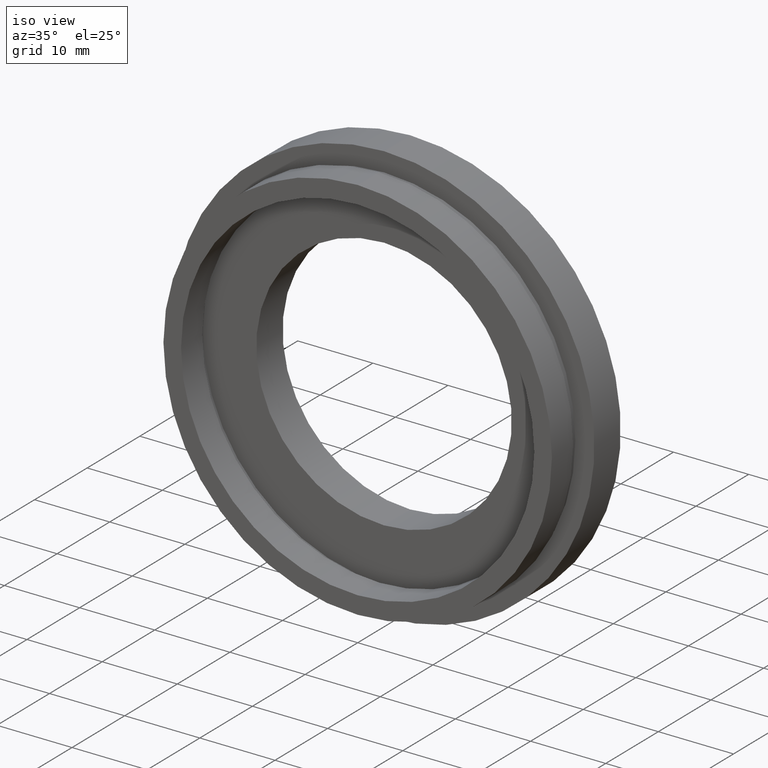
[diagram: clean part render]
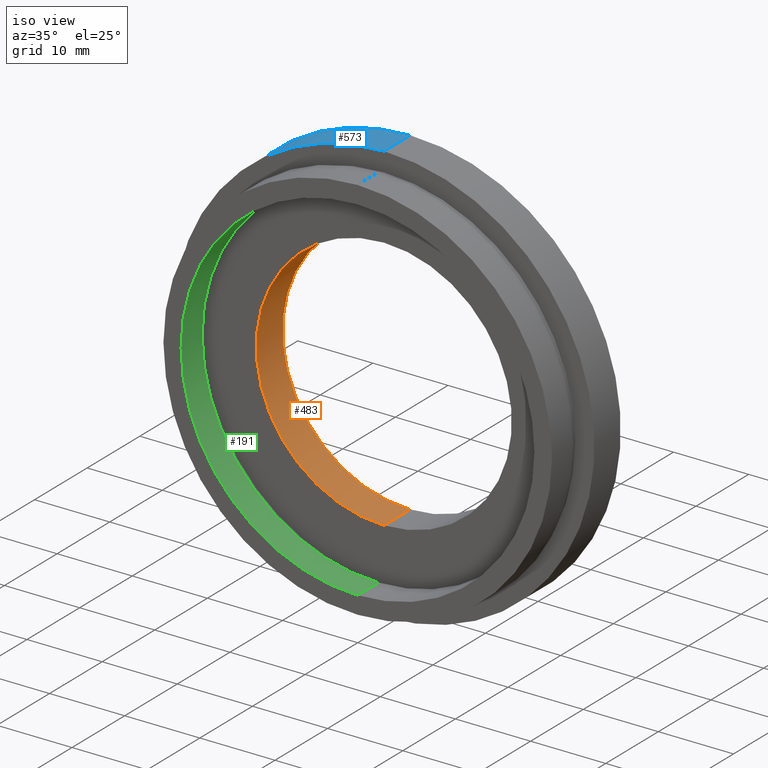
[diagram: same view with three faces highlighted in distinct colors, each labeled with its STEP entity id]
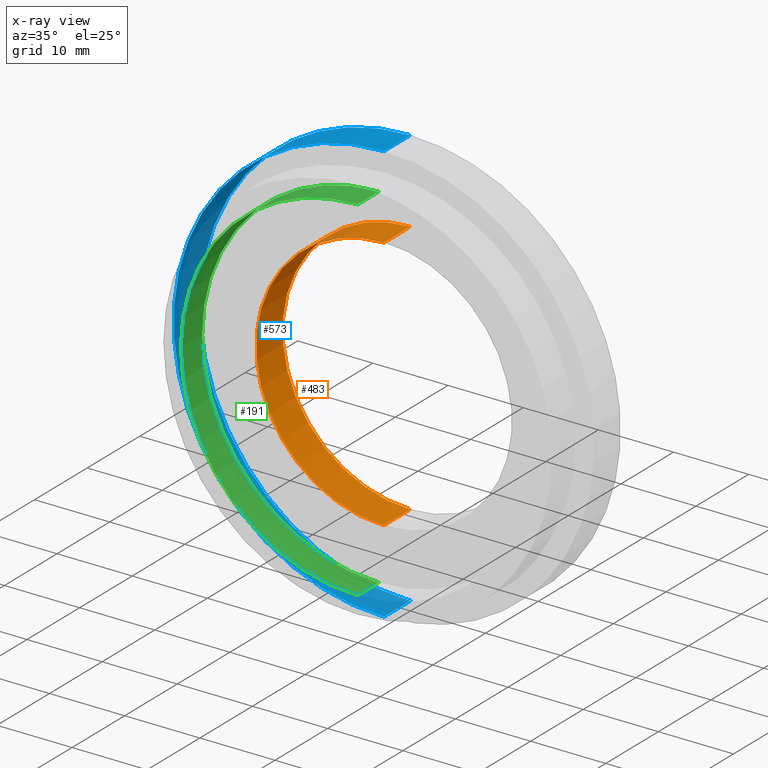
[diagram: x-ray of the same camera — body ghosted, the three highlighted faces saturated]
A machine part, iso view with three faces highlighted in distinct colors.
The next image is the same camera in x-ray (body ghosted, the three faces saturated) — at least one of them is partly hidden behind the body in this view.
Their STEP definitions:

[orange] entity #483 — the highlighted cylindrical surface (partial cylindrical patch) has radius 17 mm, axis along (-0, 1, -0).
#6 = CARTESIAN_POINT ( 'NONE',  ( 0.0000000000000000000, 13.74468085106383300, 17.00000000000000000 ) ) ;
#16 = VERTEX_POINT ( 'NONE', #46 ) ;
#34 = DIRECTION ( 'NONE',  ( 0.0000000000000000000, 0.0000000000000000000, 1.000000000000000000 ) ) ;
#46 = CARTESIAN_POINT ( 'NONE',  ( 2.081899558550500300E-015, 4.999999999999999100, -17.00000000000000000 ) ) ;
#74 = EDGE_CURVE ( 'NONE', #16, #235, #112, .T. ) ;
#82 = VECTOR ( 'NONE', #354, 1000.000000000000000 ) ;
#90 = ORIENTED_EDGE ( 'NONE', *, *, #435, .F. ) ;
#96 = CARTESIAN_POINT ( 'NONE',  ( 0.0000000000000000000, 4.999999999999999100, 17.00000000000000000 ) ) ;
#107 = LINE ( 'NONE', #6, #82 ) ;
#112 = LINE ( 'NONE', #574, #605 ) ;
#118 = CIRCLE ( 'NONE', #555, 17.00000000000000000 ) ;
#176 = ORIENTED_EDGE ( 'NONE', *, *, #559, .T. ) ;
#190 = EDGE_LOOP ( 'NONE', ( #90, #416, #176, #467 ) ) ;
#203 = CARTESIAN_POINT ( 'NONE',  ( 2.081899558550500300E-015, 9.999999999999998200, -17.00000000000000000 ) ) ;
#213 = EDGE_CURVE ( 'NONE', #333, #364, #107, .T. ) ;
#229 = AXIS2_PLACEMENT_3D ( 'NONE', #505, #367, #599 ) ;
#231 = CARTESIAN_POINT ( 'NONE',  ( 0.0000000000000000000, 9.999999999999998200, 0.0000000000000000000 ) ) ;
#235 = VERTEX_POINT ( 'NONE', #203 ) ;
#239 = FACE_OUTER_BOUND ( 'NONE', #190, .T. ) ;
#280 = DIRECTION ( 'NONE',  ( 0.0000000000000000000, 0.0000000000000000000, 1.000000000000000000 ) ) ;
#329 = DIRECTION ( 'NONE',  ( -0.0000000000000000000, 1.000000000000000000, -0.0000000000000000000 ) ) ;
#332 = DIRECTION ( 'NONE',  ( -0.0000000000000000000, 1.000000000000000000, -0.0000000000000000000 ) ) ;
#333 = VERTEX_POINT ( 'NONE', #96 ) ;
#354 = DIRECTION ( 'NONE',  ( -0.0000000000000000000, 1.000000000000000000, -0.0000000000000000000 ) ) ;
#359 = AXIS2_PLACEMENT_3D ( 'NONE', #231, #329, #280 ) ;
#364 = VERTEX_POINT ( 'NONE', #475 ) ;
#367 = DIRECTION ( 'NONE',  ( -0.0000000000000000000, 1.000000000000000000, -0.0000000000000000000 ) ) ;
#387 = DIRECTION ( 'NONE',  ( -0.0000000000000000000, 1.000000000000000000, -0.0000000000000000000 ) ) ;
#416 = ORIENTED_EDGE ( 'NONE', *, *, #74, .T. ) ;
#417 = CIRCLE ( 'NONE', #359, 17.00000000000000000 ) ;
#435 = EDGE_CURVE ( 'NONE', #16, #333, #118, .T. ) ;
#467 = ORIENTED_EDGE ( 'NONE', *, *, #213, .F. ) ;
#475 = CARTESIAN_POINT ( 'NONE',  ( 0.0000000000000000000, 9.999999999999998200, 17.00000000000000000 ) ) ;
#483 = ADVANCED_FACE ( 'NONE', ( #239 ), #551, .F. ) ;
#505 = CARTESIAN_POINT ( 'NONE',  ( 0.0000000000000000000, 13.74468085106383300, 0.0000000000000000000 ) ) ;
#551 = CYLINDRICAL_SURFACE ( 'NONE', #229, 17.00000000000000000 ) ;
#555 = AXIS2_PLACEMENT_3D ( 'NONE', #564, #332, #34 ) ;
#559 = EDGE_CURVE ( 'NONE', #235, #364, #417, .T. ) ;
#564 = CARTESIAN_POINT ( 'NONE',  ( 0.0000000000000000000, 4.999999999999999100, 0.0000000000000000000 ) ) ;
#574 = CARTESIAN_POINT ( 'NONE',  ( 2.081899558550500300E-015, 13.74468085106383300, -17.00000000000000000 ) ) ;
#599 = DIRECTION ( 'NONE',  ( 0.0000000000000000000, 0.0000000000000000000, 1.000000000000000000 ) ) ;
#605 = VECTOR ( 'NONE', #387, 1000.000000000000000 ) ;

[blue] entity #573 — the highlighted cylindrical surface (partial cylindrical patch) has radius 28 mm, axis along (-0, 1, -0).
#12 = EDGE_CURVE ( 'NONE', #596, #565, #466, .T. ) ;
#24 = CARTESIAN_POINT ( 'NONE',  ( 3.429011037612589700E-015, 9.999999999999998200, -28.00000000000000400 ) ) ;
#54 = EDGE_CURVE ( 'NONE', #142, #457, #403, .T. ) ;
#94 = CIRCLE ( 'NONE', #330, 28.00000000000000000 ) ;
#95 = CARTESIAN_POINT ( 'NONE',  ( 3.429011037612589700E-015, 13.74468085106383300, -28.00000000000000400 ) ) ;
#110 = DIRECTION ( 'NONE',  ( -0.0000000000000000000, 1.000000000000000000, -0.0000000000000000000 ) ) ;
#122 = VECTOR ( 'NONE', #390, 1000.000000000000000 ) ;
#127 = CARTESIAN_POINT ( 'NONE',  ( 0.0000000000000000000, 5.000000000000000900, 28.00000000000000000 ) ) ;
#139 = EDGE_CURVE ( 'NONE', #142, #596, #94, .T. ) ;
#142 = VERTEX_POINT ( 'NONE', #296 ) ;
#153 = FACE_OUTER_BOUND ( 'NONE', #355, .T. ) ;
#155 = CARTESIAN_POINT ( 'NONE',  ( 0.0000000000000000000, 9.999999999999998200, 28.00000000000000400 ) ) ;
#167 = DIRECTION ( 'NONE',  ( 0.0000000000000000000, 0.0000000000000000000, 1.000000000000000000 ) ) ;
#205 = ORIENTED_EDGE ( 'NONE', *, *, #12, .T. ) ;
#217 = VECTOR ( 'NONE', #442, 1000.000000000000000 ) ;
#226 = DIRECTION ( 'NONE',  ( -0.0000000000000000000, 1.000000000000000000, -0.0000000000000000000 ) ) ;
#274 = DIRECTION ( 'NONE',  ( 0.0000000000000000000, 0.0000000000000000000, 1.000000000000000000 ) ) ;
#275 = CYLINDRICAL_SURFACE ( 'NONE', #451, 28.00000000000000400 ) ;
#287 = DIRECTION ( 'NONE',  ( -0.0000000000000000000, 1.000000000000000000, -0.0000000000000000000 ) ) ;
#296 = CARTESIAN_POINT ( 'NONE',  ( 3.429011037612589300E-015, 5.000000000000000900, -28.00000000000000000 ) ) ;
#304 = CARTESIAN_POINT ( 'NONE',  ( 0.0000000000000000000, 13.74468085106383300, 28.00000000000000400 ) ) ;
#327 = ORIENTED_EDGE ( 'NONE', *, *, #54, .F. ) ;
#330 = AXIS2_PLACEMENT_3D ( 'NONE', #428, #287, #336 ) ;
#336 = DIRECTION ( 'NONE',  ( 0.0000000000000000000, 0.0000000000000000000, 1.000000000000000000 ) ) ;
#355 = EDGE_LOOP ( 'NONE', ( #327, #556, #205, #486 ) ) ;
#389 = AXIS2_PLACEMENT_3D ( 'NONE', #454, #226, #274 ) ;
#390 = DIRECTION ( 'NONE',  ( -0.0000000000000000000, 1.000000000000000000, -0.0000000000000000000 ) ) ;
#403 = LINE ( 'NONE', #95, #122 ) ;
#428 = CARTESIAN_POINT ( 'NONE',  ( 0.0000000000000000000, 5.000000000000000900, 0.0000000000000000000 ) ) ;
#442 = DIRECTION ( 'NONE',  ( -0.0000000000000000000, 1.000000000000000000, -0.0000000000000000000 ) ) ;
#451 = AXIS2_PLACEMENT_3D ( 'NONE', #463, #110, #167 ) ;
#454 = CARTESIAN_POINT ( 'NONE',  ( 0.0000000000000000000, 9.999999999999998200, 0.0000000000000000000 ) ) ;
#457 = VERTEX_POINT ( 'NONE', #24 ) ;
#463 = CARTESIAN_POINT ( 'NONE',  ( 0.0000000000000000000, 13.74468085106383300, 0.0000000000000000000 ) ) ;
#466 = LINE ( 'NONE', #304, #217 ) ;
#486 = ORIENTED_EDGE ( 'NONE', *, *, #585, .F. ) ;
#523 = CIRCLE ( 'NONE', #389, 28.00000000000000400 ) ;
#556 = ORIENTED_EDGE ( 'NONE', *, *, #139, .T. ) ;
#565 = VERTEX_POINT ( 'NONE', #155 ) ;
#573 = ADVANCED_FACE ( 'NONE', ( #153 ), #275, .T. ) ;
#585 = EDGE_CURVE ( 'NONE', #457, #565, #523, .T. ) ;
#596 = VERTEX_POINT ( 'NONE', #127 ) ;

[green] entity #191 — the highlighted cylindrical surface (partial cylindrical patch) has radius 23.5 mm, axis along (-0, 1, -0).
#20 = LINE ( 'NONE', #491, #502 ) ;
#38 = LINE ( 'NONE', #126, #162 ) ;
#40 = DIRECTION ( 'NONE',  ( -0.0000000000000000000, 1.000000000000000000, -0.0000000000000000000 ) ) ;
#68 = CARTESIAN_POINT ( 'NONE',  ( 2.877919977996280300E-015, 0.0000000000000000000, -23.50000000000000000 ) ) ;
#84 = EDGE_CURVE ( 'NONE', #433, #423, #372, .T. ) ;
#114 = ORIENTED_EDGE ( 'NONE', *, *, #373, .F. ) ;
#126 = CARTESIAN_POINT ( 'NONE',  ( 0.0000000000000000000, 13.74468085106383300, 23.50000000000000000 ) ) ;
#134 = AXIS2_PLACEMENT_3D ( 'NONE', #386, #40, #340 ) ;
#150 = AXIS2_PLACEMENT_3D ( 'NONE', #404, #236, #518 ) ;
#159 = EDGE_LOOP ( 'NONE', ( #114, #263, #570, #168 ) ) ;
#162 = VECTOR ( 'NONE', #509, 1000.000000000000000 ) ;
#168 = ORIENTED_EDGE ( 'NONE', *, *, #542, .F. ) ;
#175 = CARTESIAN_POINT ( 'NONE',  ( 0.0000000000000000000, 4.000000000000000000, 23.50000000000000000 ) ) ;
#184 = DIRECTION ( 'NONE',  ( 0.0000000000000000000, 0.0000000000000000000, 1.000000000000000000 ) ) ;
#191 = ADVANCED_FACE ( 'NONE', ( #591 ), #399, .F. ) ;
#236 = DIRECTION ( 'NONE',  ( -0.0000000000000000000, 1.000000000000000000, -0.0000000000000000000 ) ) ;
#238 = VERTEX_POINT ( 'NONE', #426 ) ;
#246 = CARTESIAN_POINT ( 'NONE',  ( 0.0000000000000000000, 4.000000000000000000, 0.0000000000000000000 ) ) ;
#263 = ORIENTED_EDGE ( 'NONE', *, *, #419, .T. ) ;
#267 = AXIS2_PLACEMENT_3D ( 'NONE', #246, #527, #184 ) ;
#340 = DIRECTION ( 'NONE',  ( 0.0000000000000000000, 0.0000000000000000000, 1.000000000000000000 ) ) ;
#372 = CIRCLE ( 'NONE', #267, 23.50000000000000000 ) ;
#373 = EDGE_CURVE ( 'NONE', #455, #238, #618, .T. ) ;
#386 = CARTESIAN_POINT ( 'NONE',  ( 0.0000000000000000000, 0.0000000000000000000, 0.0000000000000000000 ) ) ;
#399 = CYLINDRICAL_SURFACE ( 'NONE', #150, 23.50000000000000000 ) ;
#404 = CARTESIAN_POINT ( 'NONE',  ( 0.0000000000000000000, 13.74468085106383300, 0.0000000000000000000 ) ) ;
#419 = EDGE_CURVE ( 'NONE', #455, #433, #20, .T. ) ;
#423 = VERTEX_POINT ( 'NONE', #175 ) ;
#426 = CARTESIAN_POINT ( 'NONE',  ( 0.0000000000000000000, 0.0000000000000000000, 23.50000000000000000 ) ) ;
#433 = VERTEX_POINT ( 'NONE', #513 ) ;
#455 = VERTEX_POINT ( 'NONE', #68 ) ;
#491 = CARTESIAN_POINT ( 'NONE',  ( 2.877919977996280300E-015, 13.74468085106383300, -23.50000000000000000 ) ) ;
#502 = VECTOR ( 'NONE', #608, 1000.000000000000000 ) ;
#509 = DIRECTION ( 'NONE',  ( -0.0000000000000000000, 1.000000000000000000, -0.0000000000000000000 ) ) ;
#513 = CARTESIAN_POINT ( 'NONE',  ( 2.877919977996280300E-015, 4.000000000000000000, -23.50000000000000000 ) ) ;
#518 = DIRECTION ( 'NONE',  ( 0.0000000000000000000, 0.0000000000000000000, 1.000000000000000000 ) ) ;
#527 = DIRECTION ( 'NONE',  ( -0.0000000000000000000, 1.000000000000000000, -0.0000000000000000000 ) ) ;
#542 = EDGE_CURVE ( 'NONE', #238, #423, #38, .T. ) ;
#570 = ORIENTED_EDGE ( 'NONE', *, *, #84, .T. ) ;
#591 = FACE_OUTER_BOUND ( 'NONE', #159, .T. ) ;
#608 = DIRECTION ( 'NONE',  ( -0.0000000000000000000, 1.000000000000000000, -0.0000000000000000000 ) ) ;
#618 = CIRCLE ( 'NONE', #134, 23.50000000000000000 ) ;